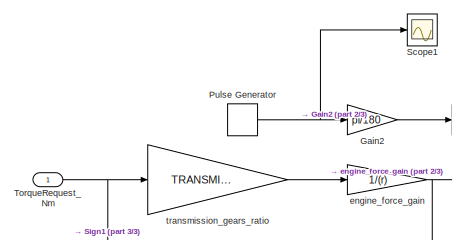
[diagram: root canvas - part 1/3, top left region]
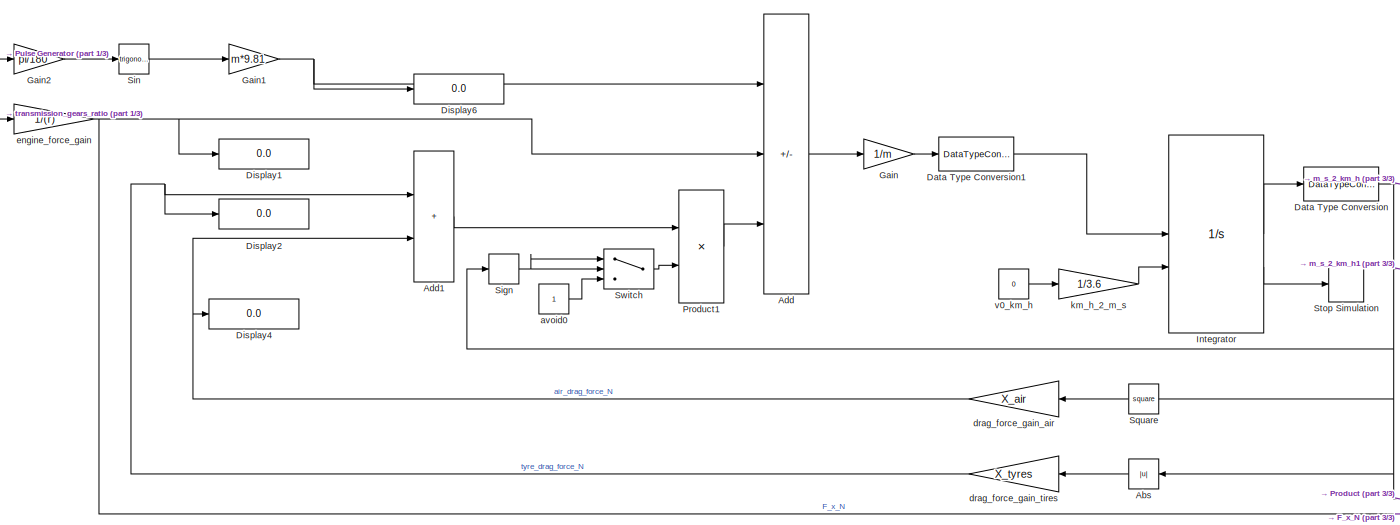
[diagram: root canvas - part 2/3, center side, full height]
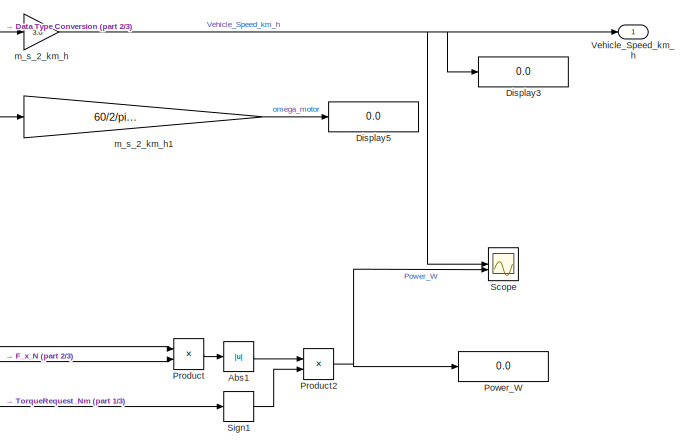
[diagram: root canvas - part 3/3, middle right region]
MODEL slx_21bb9ee9ec64
KIND model
CONFIG AbsTol = auto
CONFIG EnableMultiTasking = off
CONFIG FixedStep = auto
CONFIG MaxStep = auto
CONFIG MinStep = auto
CONFIG RelTol = 1e-3
CONFIG SampleTimeConstraint = Unconstrained
CONFIG SolverName = VariableStepAuto
CONFIG StartTime = 0.0
CONFIG StopTime = 10.0
BLOCK [Abs] Abs
  NameLocation = top
  SaturateOnIntegerOverflow = off
BLOCK [Abs] Abs1
  SaturateOnIntegerOverflow = off
BLOCK [Sum] Add
  IconShape = rectangular
  Inputs = ++-
BLOCK [Sum] Add1
  IconShape = rectangular
BLOCK [DataTypeConversion] Data Type Conversion
  LockScale = on
  OutDataTypeStr = single
  RndMeth = Floor
  SaturateOnIntegerOverflow = off
BLOCK [DataTypeConversion] Data Type Conversion1
  LockScale = on
  OutDataTypeStr = double
  RndMeth = Floor
  SaturateOnIntegerOverflow = off
BLOCK [Display] Display1
  Decimation = 1
  Format = bank
BLOCK [Display] Display2
  Decimation = 1
  Format = bank
BLOCK [Display] Display3
  Decimation = 1
  Format = bank
BLOCK [Display] Display4
  Decimation = 1
  Format = bank
BLOCK [Display] Display5
  Decimation = 1
  Format = bank
BLOCK [Display] Display6
  Decimation = 1
  Format = bank
BLOCK [Gain] Gain
  Gain = 1/m
BLOCK [Gain] Gain1
  Gain = m*9.81
BLOCK [Gain] Gain2
  Gain = pi/180
BLOCK [Integrator] Integrator
  ContinuousStateAttributes = 'vehicle_speed'
  InitialConditionSource = external
  LimitOutput = on
  LowerSaturationLimit = -MAX_SPEED_BACKWARD/3.6
  ShowSaturationPort = on
  UpperSaturationLimit = MAX_SPEED_FORWARD/3.6
BLOCK [Display] Power_W
  Decimation = 1
  Format = bank
BLOCK [Product] Product
BLOCK [Product] Product1
BLOCK [Product] Product2
BLOCK [DiscretePulseGenerator] Pulse Generator
  Amplitude = 0
  PhaseDelay = 5
  PulseType = Time based
  PulseWidth = 50
BLOCK [Scope] Scope
  Floating = off
  NumInputPorts = 2
  ScopeSpecificationString = Simulink.scopes.TimeScopeBlockCfg('CurrentConfiguration', extmgr.ConfigurationSet(extmgr.Configuration('Core','General UI',true),extmgr.Configuration('Core','Source UI',true),extmgr.Configuration('Sources','WiredSimulink',true),extmgr.Configuration('Visuals','Time Domain',true,'SerializedDisplays',{struct('MinYLimReal','-33.59273','MaxYLimReal','103.21572','YLabelReal','','MinYLimMag','0.00000','M...<+1965ch>
BLOCK [Scope] Scope1
  Floating = off
  NumInputPorts = 1
  ScopeSpecificationString = Simulink.scopes.TimeScopeBlockCfg('CurrentConfiguration', extmgr.ConfigurationSet(extmgr.Configuration('Core','General UI',true),extmgr.Configuration('Core','Source UI',true),extmgr.Configuration('Sources','WiredSimulink',true,'DataLoggingVariableName','ScopeData1'),extmgr.Configuration('Visuals','Time Domain',true,'SerializedDisplays',{struct('MinYLimReal','-1.00000','MaxYLimReal','1.00000','YLab...<+1504ch>
BLOCK [Signum] Sign
  ZeroCross = off
BLOCK [Signum] Sign1
  ZeroCross = off
BLOCK [Trigonometry] Sin
  OutputSignalType = real
BLOCK [Math] Square
  NameLocation = top
  Operator = square
BLOCK [Stop] Stop Simulation
BLOCK [Switch] Switch
  Criteria = u2 ~= 0
  InputSameDT = off
  SaturateOnIntegerOverflow = off
BLOCK [Inport] TorqueRequest_Nm
  OutDataTypeStr = single
BLOCK [Outport] Vehicle_Speed_km_h
  OutDataTypeStr = single
  Unit = km/h
BLOCK [Constant] avoid0
  OutDataTypeStr = double
BLOCK [Gain] drag_force_gain_air
  Gain = X_air
  NameLocation = top
BLOCK [Gain] drag_force_gain_tires
  Gain = X_tyres
  NameLocation = top
BLOCK [Gain] engine_force_gain
  Gain = 1/(r)
BLOCK [Gain] km_h_2_m_s
  Gain = 1/3.6
BLOCK [Gain] m_s_2_km_h
  Gain = 3.6
BLOCK [Gain] m_s_2_km_h1
  Gain = 60/2/pi/r*TRANSMISSION_RATIO
BLOCK [Gain] transmission_gears_ratio
  Gain = TRANSMISSION_RATIO
BLOCK [Constant] v0_km_h
  OutDataTypeStr = double
  Value = 0
LINE Abs1:1 -> Product2:1
LINE Abs:1 -> drag_force_gain_tires:1
LINE Add1:1 -> Product1:1
LINE Add:1 -> Gain:1
LINE Data Type Conversion1:1 -> Integrator:1
NET Data Type Conversion:1 -> Abs:1, Product:1, Sign:1, Square:1, m_s_2_km_h1:1, m_s_2_km_h:1
NET Gain1:1 -> Add:1, Display6:1
LINE Gain2:1 -> Sin:1
LINE Gain:1 -> Data Type Conversion1:1
LINE Integrator:1 -> Data Type Conversion:1
LINE Integrator:2 -> Stop Simulation:1
LINE Product1:1 -> Add:3
NET Product2:1 -> Power_W:1, Scope:2
LINE Product:1 -> Abs1:1
NET Pulse Generator:1 -> Gain2:1, Scope1:1
LINE Sign1:1 -> Product2:2
NET Sign:1 -> Switch:1, Switch:2
LINE Sin:1 -> Gain1:1
LINE Square:1 -> drag_force_gain_air:1
LINE Switch:1 -> Product1:2
NET TorqueRequest_Nm:1 -> Sign1:1, transmission_gears_ratio:1
LINE avoid0:1 -> Switch:3
NET drag_force_gain_air:1 -> Add1:2, Display4:1
NET drag_force_gain_tires:1 -> Add1:1, Display2:1
NET engine_force_gain:1 -> Add:2, Display1:1, Product:2
LINE km_h_2_m_s:1 -> Integrator:2
LINE m_s_2_km_h1:1 -> Display5:1
NET m_s_2_km_h:1 -> Display3:1, Scope:1, Vehicle_Speed_km_h:1
LINE transmission_gears_ratio:1 -> engine_force_gain:1
LINE v0_km_h:1 -> km_h_2_m_s:1
note: NET lines group one-source signal fan-out (src -> all destinations, sorted); 1:1 wires keep LINE
